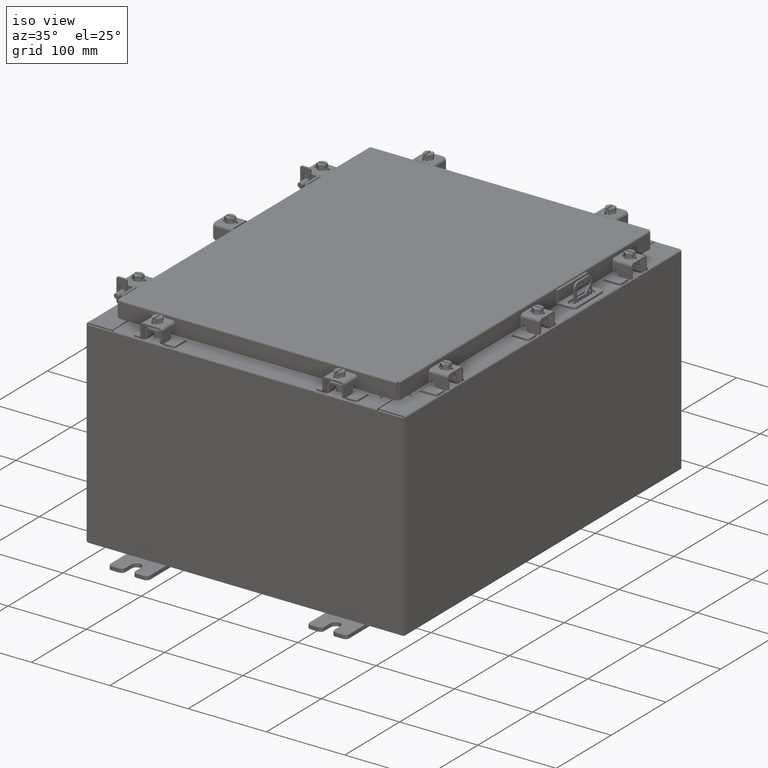
[diagram: clean part render]
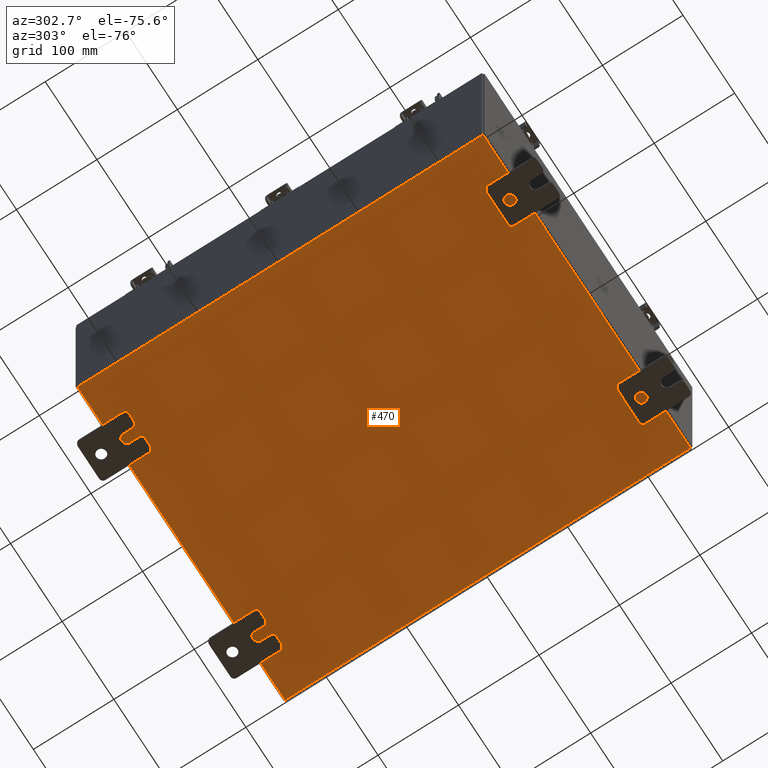
[diagram: tour spotlight — one face highlighted and labeled with its STEP entity id]
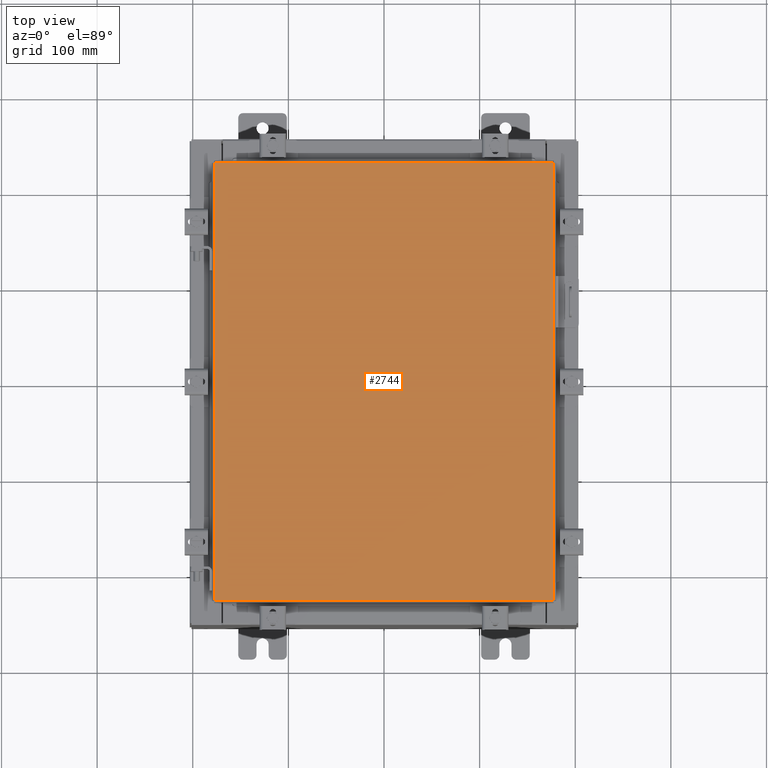
[diagram: tour spotlight — one face highlighted and labeled with its STEP entity id]
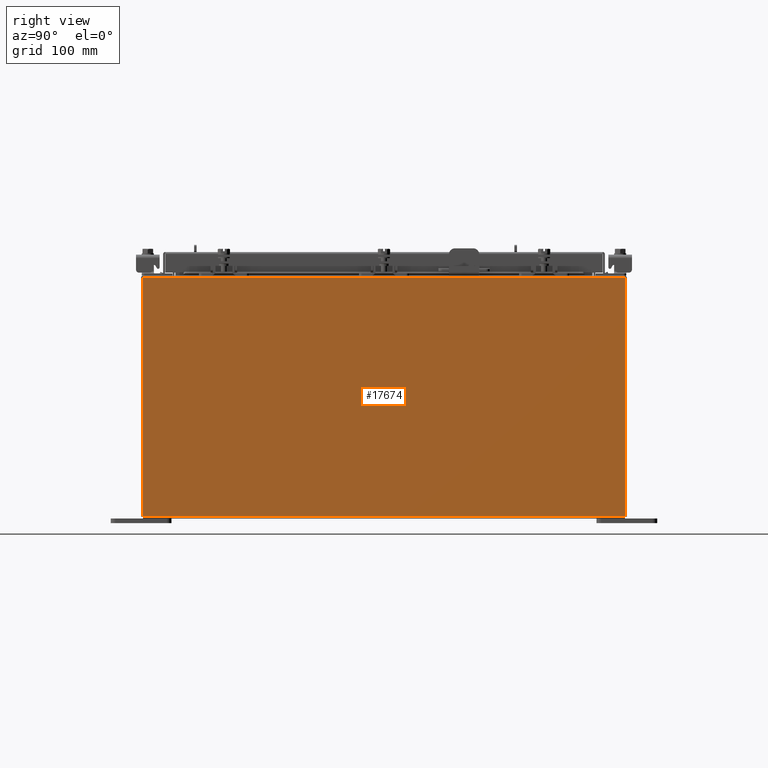
[diagram: tour spotlight — one face highlighted and labeled with its STEP entity id]
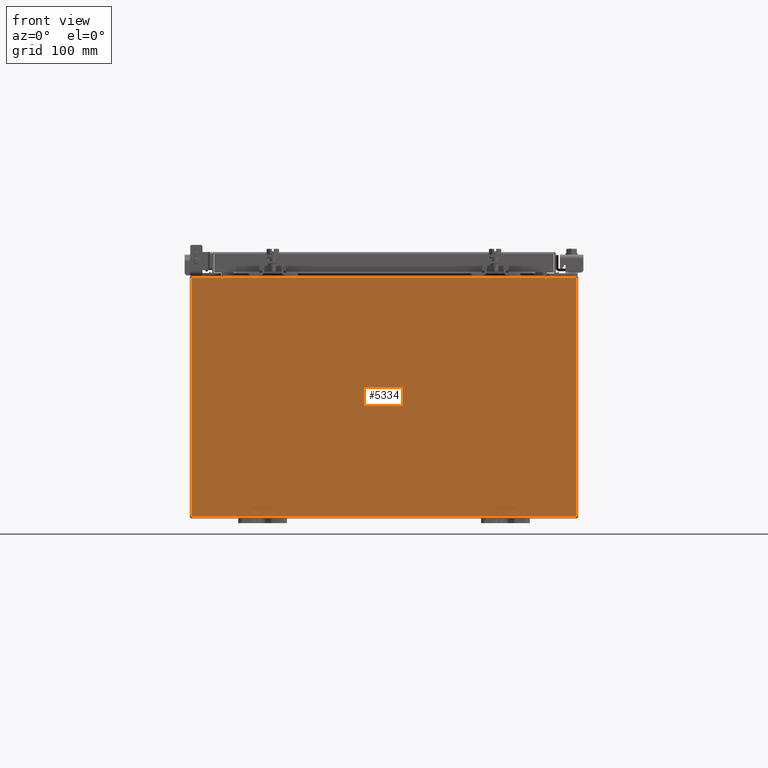
[diagram: tour spotlight — one face highlighted and labeled with its STEP entity id]
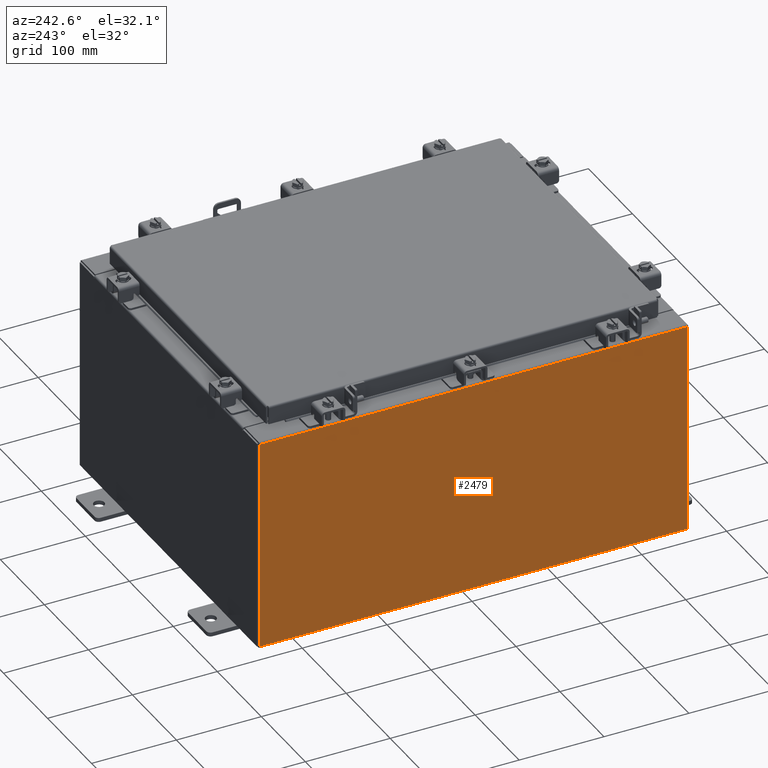
[diagram: tour spotlight — one face highlighted and labeled with its STEP entity id]
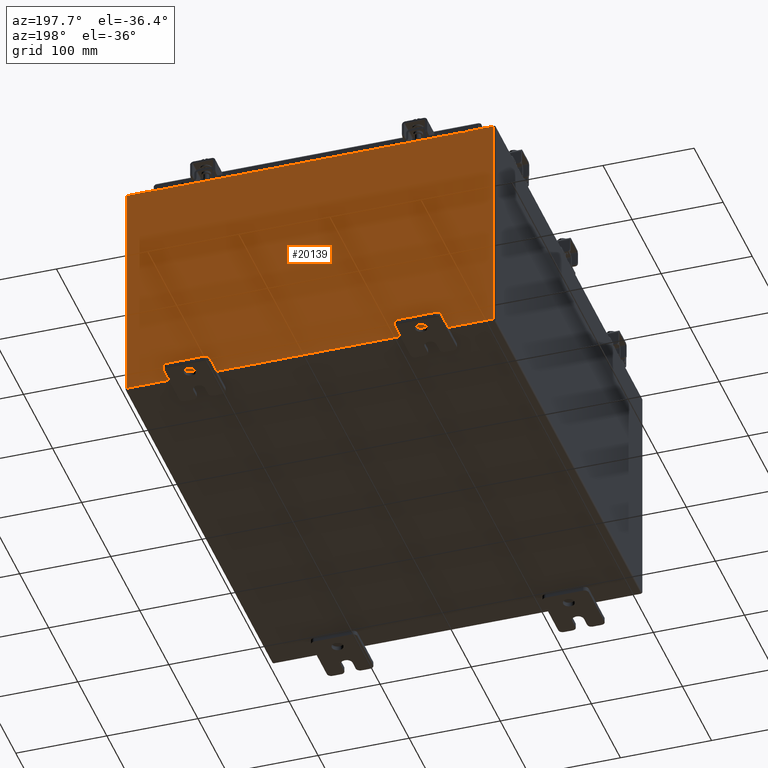
[diagram: tour spotlight — one face highlighted and labeled with its STEP entity id]
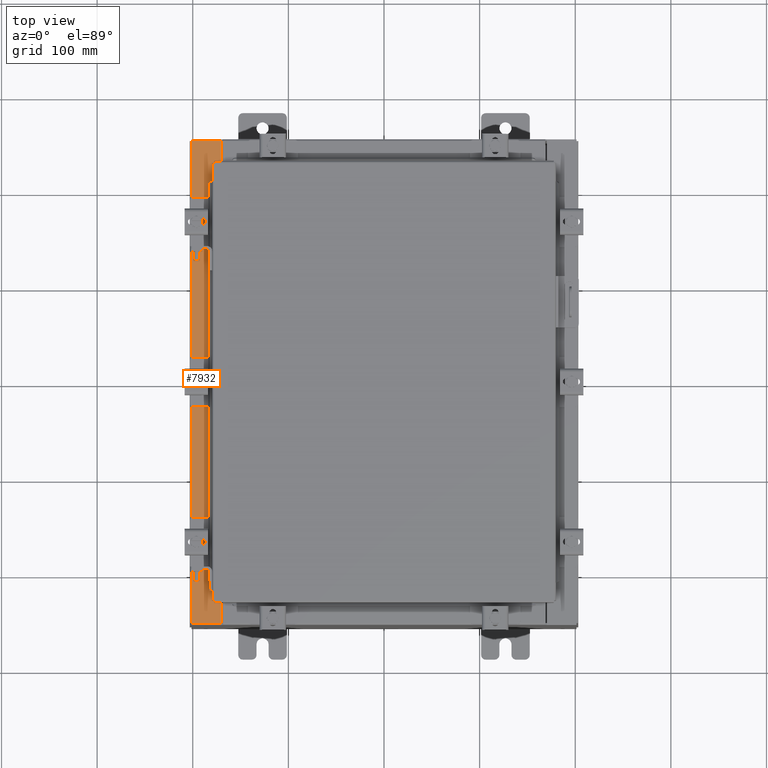
[diagram: tour spotlight — one face highlighted and labeled with its STEP entity id]
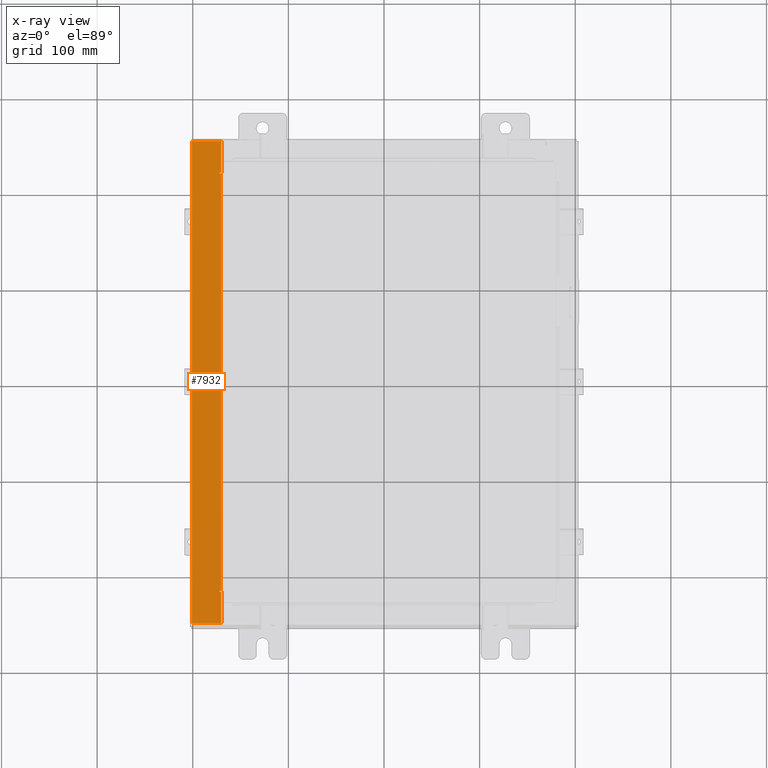
[diagram: x-ray of the same camera — body ghosted, this tour face saturated]
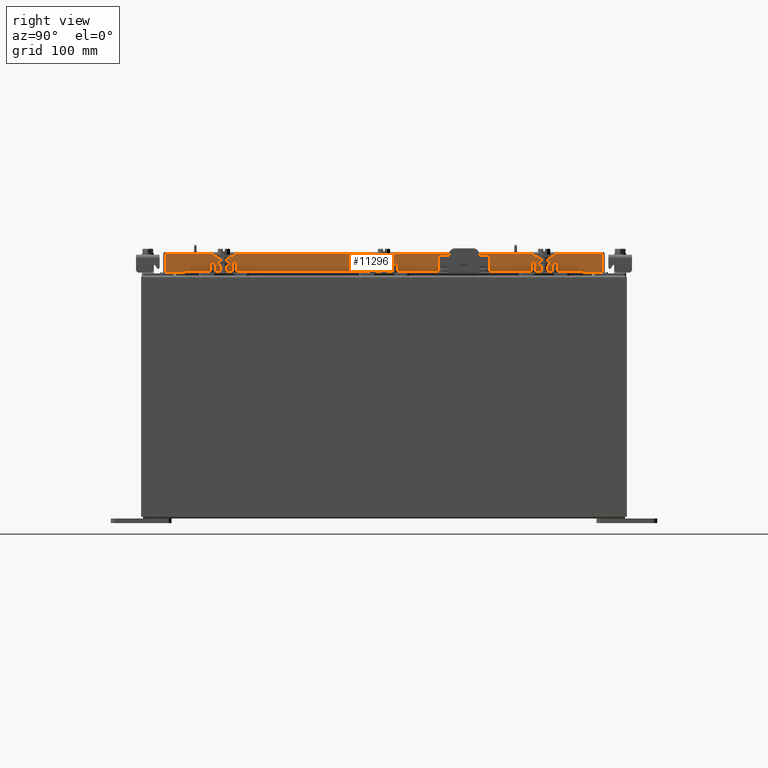
[diagram: tour spotlight — one face highlighted and labeled with its STEP entity id]
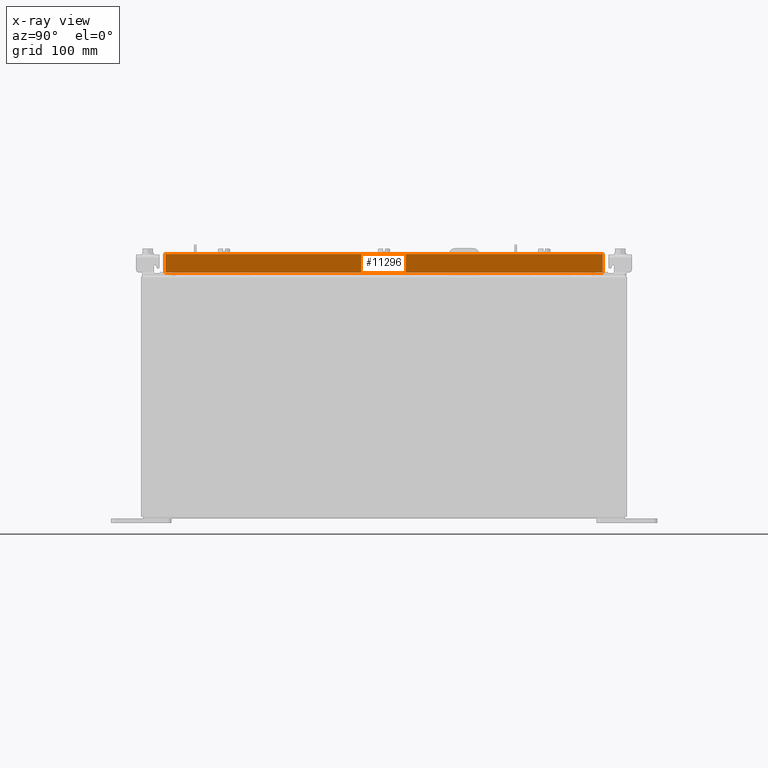
[diagram: x-ray of the same camera — body ghosted, this tour face saturated]
A machine part: a face-by-face anatomy tour. The part has 1784 B-rep faces; the first image is the clean iso view, then the 8 largest visible faces are spotlighted one at a time (largest first), each with its STEP entity span.

Face 1 — auxiliary view, entity #470. In plain terms, the highlighted planar face has unit normal (0, 0, -1).
Definition (entity closure, byte-faithful):
#470 = ADVANCED_FACE ( 'NONE', ( #15129 ), #4348, .T. ) ;
#880 = VERTEX_POINT ( 'NONE', #19056 ) ;
#1018 = LINE ( 'NONE', #14073, #5076 ) ;
#1867 = EDGE_LOOP ( 'NONE', ( #3845, #10403, #22343, #6844 ) ) ;
#1892 = DIRECTION ( 'NONE',  ( -0.0000000000000000000, -1.000000000000000000, -0.0000000000000000000 ) ) ;
#2309 = EDGE_CURVE ( 'NONE', #15079, #12192, #22142, .T. ) ;
#3670 = CARTESIAN_POINT ( 'NONE',  ( -7.912299999999997400, 9.925299999999998200, -0.07470000000000000300 ) ) ;
#3845 = ORIENTED_EDGE ( 'NONE', *, *, #15566, .F. ) ;
#4290 = CARTESIAN_POINT ( 'NONE',  ( 0.0000000000000000000, 0.0000000000000000000, -0.07470000000000000300 ) ) ;
#4348 = PLANE ( 'NONE',  #14197 ) ;
#4720 = CARTESIAN_POINT ( 'NONE',  ( -7.912299999999997400, -9.925300000000000000, -0.07469999999999994700 ) ) ;
#5076 = VECTOR ( 'NONE', #1892, 39.37007874015748100 ) ;
#5365 = CARTESIAN_POINT ( 'NONE',  ( 7.912300000000001900, 9.925299999999992900, -0.07469999999999994700 ) ) ;
#6234 = EDGE_CURVE ( 'NONE', #14977, #12192, #16715, .T. ) ;
#6243 = VECTOR ( 'NONE', #8342, 39.37007874015748100 ) ;
#6844 = ORIENTED_EDGE ( 'NONE', *, *, #12830, .T. ) ;
#7458 = DIRECTION ( 'NONE',  ( -1.000000000000000000, -0.0000000000000000000, -0.0000000000000000000 ) ) ;
#8342 = DIRECTION ( 'NONE',  ( 1.000000000000000000, 0.0000000000000000000, 0.0000000000000000000 ) ) ;
#9625 = DIRECTION ( 'NONE',  ( -1.000000000000000000, 0.0000000000000000000, -0.0000000000000000000 ) ) ;
#9707 = DIRECTION ( 'NONE',  ( 0.0000000000000000000, 0.0000000000000000000, -1.000000000000000000 ) ) ;
#10403 = ORIENTED_EDGE ( 'NONE', *, *, #6234, .T. ) ;
#10908 = CARTESIAN_POINT ( 'NONE',  ( -7.999999999999997300, 9.925299999999998200, -0.07470000000000000300 ) ) ;
#11449 = LINE ( 'NONE', #15262, #6243 ) ;
#12192 = VERTEX_POINT ( 'NONE', #3670 ) ;
#12830 = EDGE_CURVE ( 'NONE', #15079, #880, #1018, .T. ) ;
#12897 = VECTOR ( 'NONE', #7458, 39.37007874015748100 ) ;
#13190 = DIRECTION ( 'NONE',  ( -0.0000000000000000000, 1.000000000000000000, -0.0000000000000000000 ) ) ;
#14073 = CARTESIAN_POINT ( 'NONE',  ( 7.912300000000001900, 9.925299999999998200, -0.07469999999999994700 ) ) ;
#14197 = AXIS2_PLACEMENT_3D ( 'NONE', #4290, #9707, #9625 ) ;
#14977 = VERTEX_POINT ( 'NONE', #4720 ) ;
#15046 = VECTOR ( 'NONE', #13190, 39.37007874015748100 ) ;
#15079 = VERTEX_POINT ( 'NONE', #5365 ) ;
#15129 = FACE_OUTER_BOUND ( 'NONE', #1867, .T. ) ;
#15262 = CARTESIAN_POINT ( 'NONE',  ( -7.999999999999997300, -9.925300000000001800, -0.07470000000000000300 ) ) ;
#15566 = EDGE_CURVE ( 'NONE', #14977, #880, #11449, .T. ) ;
#16715 = LINE ( 'NONE', #20099, #15046 ) ;
#19056 = CARTESIAN_POINT ( 'NONE',  ( 7.912300000000001900, -9.925300000000001800, -0.07470000000000000300 ) ) ;
#20099 = CARTESIAN_POINT ( 'NONE',  ( -7.912299999999997400, -9.925300000000001800, -0.07469999999999994700 ) ) ;
#22142 = LINE ( 'NONE', #10908, #12897 ) ;
#22343 = ORIENTED_EDGE ( 'NONE', *, *, #2309, .F. ) ;

Face 2 — top view, entity #2744. In plain terms, the highlighted planar face has unit normal (0, 0, -1).
Definition (entity closure, byte-faithful):
#977 = LINE ( 'NONE', #17255, #14305 ) ;
#1365 = DIRECTION ( 'NONE',  ( -1.000000000000000000, 0.0000000000000000000, -0.0000000000000000000 ) ) ;
#1507 = VERTEX_POINT ( 'NONE', #14988 ) ;
#2744 = ADVANCED_FACE ( 'NONE', ( #19665 ), #6511, .F. ) ;
#2867 = VERTEX_POINT ( 'NONE', #20767 ) ;
#3836 = VECTOR ( 'NONE', #21736, 39.37007874015748100 ) ;
#4334 = ORIENTED_EDGE ( 'NONE', *, *, #13848, .T. ) ;
#4351 = DIRECTION ( 'NONE',  ( 0.0000000000000000000, -1.000000000000000000, 0.0000000000000000000 ) ) ;
#4987 = DIRECTION ( 'NONE',  ( -1.000000000000000000, -0.0000000000000000000, -0.0000000000000000000 ) ) ;
#5239 = DIRECTION ( 'NONE',  ( 1.000000000000000000, -0.0000000000000000000, -0.0000000000000000000 ) ) ;
#5463 = EDGE_CURVE ( 'NONE', #6940, #12740, #19441, .T. ) ;
#5826 = EDGE_CURVE ( 'NONE', #12740, #1507, #17513, .T. ) ;
#6511 = PLANE ( 'NONE',  #21649 ) ;
#6892 = CARTESIAN_POINT ( 'NONE',  ( -6.990300000000003100, -9.006300000000003100, -2.048885995248197400E-016 ) ) ;
#6940 = VERTEX_POINT ( 'NONE', #13369 ) ;
#7102 = EDGE_CURVE ( 'NONE', #1507, #2867, #17734, .T. ) ;
#7457 = ORIENTED_EDGE ( 'NONE', *, *, #7102, .T. ) ;
#7784 = CARTESIAN_POINT ( 'NONE',  ( 6.990299999999996800, -9.006300000000003100, 3.414809992080329000E-016 ) ) ;
#7956 = EDGE_LOOP ( 'NONE', ( #10164, #7457, #4334, #12708 ) ) ;
#8773 = VECTOR ( 'NONE', #5239, 39.37007874015748100 ) ;
#10044 = CARTESIAN_POINT ( 'NONE',  ( 0.0000000000000000000, 0.0000000000000000000, 0.0000000000000000000 ) ) ;
#10164 = ORIENTED_EDGE ( 'NONE', *, *, #5826, .T. ) ;
#11815 = DIRECTION ( 'NONE',  ( 0.0000000000000000000, 0.0000000000000000000, -1.000000000000000000 ) ) ;
#12708 = ORIENTED_EDGE ( 'NONE', *, *, #5463, .T. ) ;
#12740 = VERTEX_POINT ( 'NONE', #6892 ) ;
#13060 = CARTESIAN_POINT ( 'NONE',  ( -6.990300000000003100, 9.006299999999996000, -2.048885995248197400E-016 ) ) ;
#13369 = CARTESIAN_POINT ( 'NONE',  ( -6.990300000000003100, 9.006299999999996000, -2.048885995248197400E-016 ) ) ;
#13848 = EDGE_CURVE ( 'NONE', #2867, #6940, #977, .T. ) ;
#13932 = CARTESIAN_POINT ( 'NONE',  ( -6.990300000000003100, -9.006300000000003100, -2.048885995248197400E-016 ) ) ;
#14305 = VECTOR ( 'NONE', #4987, 39.37007874015748100 ) ;
#14988 = CARTESIAN_POINT ( 'NONE',  ( 6.990299999999996800, -9.006300000000003100, 3.414809992080329000E-016 ) ) ;
#17255 = CARTESIAN_POINT ( 'NONE',  ( 6.990299999999996800, 9.006299999999996000, 3.414809992080329000E-016 ) ) ;
#17513 = LINE ( 'NONE', #13932, #8773 ) ;
#17734 = LINE ( 'NONE', #7784, #3836 ) ;
#18900 = VECTOR ( 'NONE', #4351, 39.37007874015748100 ) ;
#19441 = LINE ( 'NONE', #13060, #18900 ) ;
#19665 = FACE_OUTER_BOUND ( 'NONE', #7956, .T. ) ;
#20767 = CARTESIAN_POINT ( 'NONE',  ( 6.990299999999996800, 9.006299999999996000, 3.414809992080329000E-016 ) ) ;
#21649 = AXIS2_PLACEMENT_3D ( 'NONE', #10044, #11815, #1365 ) ;
#21736 = DIRECTION ( 'NONE',  ( 0.0000000000000000000, 1.000000000000000000, 0.0000000000000000000 ) ) ;

Face 3 — right view, entity #17674. In plain terms, the highlighted planar face has unit normal (-1, 0, 0).
Definition (entity closure, byte-faithful):
#184 = DIRECTION ( 'NONE',  ( -0.0000000000000000000, -1.000000000000000000, -0.0000000000000000000 ) ) ;
#1106 = LINE ( 'NONE', #18015, #5160 ) ;
#1653 = DIRECTION ( 'NONE',  ( 3.523082860860887800E-015, 0.0000000000000000000, 1.000000000000000000 ) ) ;
#3109 = ORIENTED_EDGE ( 'NONE', *, *, #21740, .T. ) ;
#3563 = CARTESIAN_POINT ( 'NONE',  ( 8.000000000000001800, -9.925300000000001800, 0.01299999999999984700 ) ) ;
#4260 = AXIS2_PLACEMENT_3D ( 'NONE', #19028, #12117, #1653 ) ;
#4797 = ORIENTED_EDGE ( 'NONE', *, *, #10782, .F. ) ;
#5160 = VECTOR ( 'NONE', #19831, 39.37007874015748100 ) ;
#7076 = CARTESIAN_POINT ( 'NONE',  ( 8.000000000000001800, -9.925300000000001800, 0.01299999999999984300 ) ) ;
#7546 = FACE_OUTER_BOUND ( 'NONE', #9130, .T. ) ;
#7598 = LINE ( 'NONE', #21951, #11718 ) ;
#7952 = ORIENTED_EDGE ( 'NONE', *, *, #16639, .T. ) ;
#8370 = DIRECTION ( 'NONE',  ( 3.523082860860888200E-015, -2.201926788038055100E-016, 1.000000000000000000 ) ) ;
#9130 = EDGE_LOOP ( 'NONE', ( #3109, #7952, #4797, #15101 ) ) ;
#9550 = VERTEX_POINT ( 'NONE', #21829 ) ;
#10782 = EDGE_CURVE ( 'NONE', #9550, #16245, #17217, .T. ) ;
#11718 = VECTOR ( 'NONE', #15011, 39.37007874015748100 ) ;
#12057 = VECTOR ( 'NONE', #184, 39.37007874015748100 ) ;
#12117 = DIRECTION ( 'NONE',  ( -1.000000000000000000, 0.0000000000000000000, 3.523082860860887800E-015 ) ) ;
#12254 = CARTESIAN_POINT ( 'NONE',  ( 8.000000000000037300, -9.925300000000005300, 9.837599999999998300 ) ) ;
#13102 = EDGE_CURVE ( 'NONE', #9550, #13887, #19244, .T. ) ;
#13887 = VERTEX_POINT ( 'NONE', #19083 ) ;
#14604 = VECTOR ( 'NONE', #8370, 39.37007874015748100 ) ;
#15011 = DIRECTION ( 'NONE',  ( -3.523082860860888200E-015, 0.0000000000000000000, -1.000000000000000000 ) ) ;
#15059 = VERTEX_POINT ( 'NONE', #12254 ) ;
#15101 = ORIENTED_EDGE ( 'NONE', *, *, #13102, .T. ) ;
#16245 = VERTEX_POINT ( 'NONE', #7076 ) ;
#16639 = EDGE_CURVE ( 'NONE', #15059, #16245, #7598, .T. ) ;
#17217 = LINE ( 'NONE', #3563, #12057 ) ;
#17674 = ADVANCED_FACE ( 'NONE', ( #7546 ), #20772, .F. ) ;
#18015 = CARTESIAN_POINT ( 'NONE',  ( 8.000000000000035500, 9.925299999999991100, 9.837599999999998300 ) ) ;
#19028 = CARTESIAN_POINT ( 'NONE',  ( 8.000000000000001800, 0.0000000000000000000, -2.844547654289869600E-014 ) ) ;
#19083 = CARTESIAN_POINT ( 'NONE',  ( 8.000000000000035500, 9.925299999999987600, 9.837599999999998300 ) ) ;
#19244 = LINE ( 'NONE', #20565, #14604 ) ;
#19831 = DIRECTION ( 'NONE',  ( -0.0000000000000000000, -1.000000000000000000, -0.0000000000000000000 ) ) ;
#20565 = CARTESIAN_POINT ( 'NONE',  ( 8.000000000000001800, 9.925299999999998200, -2.625999814796728400E-014 ) ) ;
#20772 = PLANE ( 'NONE',  #4260 ) ;
#21740 = EDGE_CURVE ( 'NONE', #13887, #15059, #1106, .T. ) ;
#21829 = CARTESIAN_POINT ( 'NONE',  ( 8.000000000000001800, 9.925299999999992900, 0.01299999999999984700 ) ) ;
#21951 = CARTESIAN_POINT ( 'NONE',  ( 8.000000000000001800, -9.925300000000001800, -2.844547654289869600E-014 ) ) ;

Face 4 — front view, entity #5334. In plain terms, the highlighted planar face has unit normal (-0, 1, -0).
Definition (entity closure, byte-faithful):
#133 = CARTESIAN_POINT ( 'NONE',  ( 6.637199999999997300, 0.0000000000000000000, 4.874950000000001000 ) ) ;
#700 = CARTESIAN_POINT ( 'NONE',  ( 0.0000000000000000000, 0.0000000000000000000, 0.0000000000000000000 ) ) ;
#955 = DIRECTION ( 'NONE',  ( 1.000000000000000000, 0.0000000000000000000, 0.0000000000000000000 ) ) ;
#1143 = CARTESIAN_POINT ( 'NONE',  ( -6.637200000000000900, -1.707404996040164500E-016, 4.912300000000001000 ) ) ;
#1147 = DIRECTION ( 'NONE',  ( -0.0000000000000000000, -0.0000000000000000000, 1.000000000000000000 ) ) ;
#1381 = CARTESIAN_POINT ( 'NONE',  ( -6.674550000000000900, 0.0000000000000000000, 4.925300000000000900 ) ) ;
#1389 = VERTEX_POINT ( 'NONE', #21246 ) ;
#1433 = VERTEX_POINT ( 'NONE', #4407 ) ;
#1451 = CARTESIAN_POINT ( 'NONE',  ( -6.637200000000000900, -1.707404996040164500E-016, 4.912300000000001000 ) ) ;
#1465 = EDGE_CURVE ( 'NONE', #13110, #17860, #3916, .T. ) ;
#2424 = PLANE ( 'NONE',  #20073 ) ;
#2566 = VECTOR ( 'NONE', #8254, 39.37007874015748100 ) ;
#2634 = CIRCLE ( 'NONE', #11332, 0.01867500000000003900 ) ;
#2861 = VECTOR ( 'NONE', #3689, 39.37007874015748100 ) ;
#3078 = VECTOR ( 'NONE', #5306, 39.37007874015748100 ) ;
#3605 = CARTESIAN_POINT ( 'NONE',  ( -6.637200000000000900, -0.0000000000000000000, 0.0000000000000000000 ) ) ;
#3689 = DIRECTION ( 'NONE',  ( 0.0000000000000000000, 0.0000000000000000000, -1.000000000000000000 ) ) ;
#3773 = CARTESIAN_POINT ( 'NONE',  ( 6.674549999999998200, 0.0000000000000000000, 4.925300000000000900 ) ) ;
#3916 = LINE ( 'NONE', #1143, #17268 ) ;
#4407 = CARTESIAN_POINT ( 'NONE',  ( -7.925300000000002700, 0.0000000000000000000, 4.925300000000000900 ) ) ;
#5268 = FACE_OUTER_BOUND ( 'NONE', #15280, .T. ) ;
#5306 = DIRECTION ( 'NONE',  ( 0.0000000000000000000, 0.0000000000000000000, -1.000000000000000000 ) ) ;
#5334 = ADVANCED_FACE ( 'NONE', ( #5268 ), #2424, .F. ) ;
#5415 = VECTOR ( 'NONE', #21693, 39.37007874015748100 ) ;
#5443 = CARTESIAN_POINT ( 'NONE',  ( -6.674550000000000900, 0.0000000000000000000, 4.874950000000001000 ) ) ;
#5450 = ORIENTED_EDGE ( 'NONE', *, *, #18577, .F. ) ;
#5914 = DIRECTION ( 'NONE',  ( 0.0000000000000000000, -0.0000000000000000000, -1.000000000000000000 ) ) ;
#6482 = ORIENTED_EDGE ( 'NONE', *, *, #14341, .F. ) ;
#6626 = LINE ( 'NONE', #18771, #20018 ) ;
#6631 = VERTEX_POINT ( 'NONE', #3773 ) ;
#7142 = EDGE_CURVE ( 'NONE', #6631, #13543, #21838, .T. ) ;
#7363 = VERTEX_POINT ( 'NONE', #1381 ) ;
#7513 = DIRECTION ( 'NONE',  ( 1.000000000000000000, 0.0000000000000000000, 0.0000000000000000000 ) ) ;
#7702 = LINE ( 'NONE', #20923, #3078 ) ;
#7954 = EDGE_CURVE ( 'NONE', #1389, #1433, #14018, .T. ) ;
#8254 = DIRECTION ( 'NONE',  ( -1.000000000000000000, -0.0000000000000000000, -0.0000000000000000000 ) ) ;
#8461 = VECTOR ( 'NONE', #955, 39.37007874015748100 ) ;
#8974 = CARTESIAN_POINT ( 'NONE',  ( -6.655875000000000900, 0.0000000000000000000, 4.874950000000001000 ) ) ;
#9285 = EDGE_CURVE ( 'NONE', #13543, #18596, #18353, .T. ) ;
#9303 = CARTESIAN_POINT ( 'NONE',  ( 6.655874999999998200, 0.0000000000000000000, 4.874950000000001000 ) ) ;
#9497 = CARTESIAN_POINT ( 'NONE',  ( 7.925299999999996500, 0.0000000000000000000, 4.925300000000000900 ) ) ;
#10742 = DIRECTION ( 'NONE',  ( 0.0000000000000000000, 0.0000000000000000000, -1.000000000000000000 ) ) ;
#11080 = DIRECTION ( 'NONE',  ( 0.0000000000000000000, 0.0000000000000000000, -1.000000000000000000 ) ) ;
#11332 = AXIS2_PLACEMENT_3D ( 'NONE', #9303, #21511, #11080 ) ;
#11959 = AXIS2_PLACEMENT_3D ( 'NONE', #8974, #21180, #10742 ) ;
#11967 = ORIENTED_EDGE ( 'NONE', *, *, #7142, .T. ) ;
#11985 = CIRCLE ( 'NONE', #11959, 0.01867500000000003900 ) ;
#12120 = ORIENTED_EDGE ( 'NONE', *, *, #14303, .T. ) ;
#12188 = ORIENTED_EDGE ( 'NONE', *, *, #1465, .T. ) ;
#12474 = CARTESIAN_POINT ( 'NONE',  ( 6.637199999999999100, 0.0000000000000000000, 4.912300000000001000 ) ) ;
#13110 = VERTEX_POINT ( 'NONE', #1451 ) ;
#13154 = ORIENTED_EDGE ( 'NONE', *, *, #14874, .T. ) ;
#13543 = VERTEX_POINT ( 'NONE', #9497 ) ;
#13985 = EDGE_CURVE ( 'NONE', #13110, #19746, #21399, .T. ) ;
#14018 = LINE ( 'NONE', #20265, #17552 ) ;
#14303 = EDGE_CURVE ( 'NONE', #18596, #1389, #21101, .T. ) ;
#14341 = EDGE_CURVE ( 'NONE', #14486, #17860, #6626, .T. ) ;
#14486 = VERTEX_POINT ( 'NONE', #133 ) ;
#14874 = EDGE_CURVE ( 'NONE', #1433, #7363, #18824, .T. ) ;
#15116 = VERTEX_POINT ( 'NONE', #5443 ) ;
#15280 = EDGE_LOOP ( 'NONE', ( #16894, #19924, #19619, #12188, #6482, #5450, #22508, #11967, #19092, #12120, #17857, #13154 ) ) ;
#15310 = EDGE_CURVE ( 'NONE', #15116, #7363, #19338, .T. ) ;
#15904 = CARTESIAN_POINT ( 'NONE',  ( -6.637200000000000900, -0.0000000000000000000, 4.874950000000001000 ) ) ;
#15960 = DIRECTION ( 'NONE',  ( 0.0000000000000000000, 0.0000000000000000000, -1.000000000000000000 ) ) ;
#16378 = DIRECTION ( 'NONE',  ( 0.0000000000000000000, -1.000000000000000000, 0.0000000000000000000 ) ) ;
#16434 = CARTESIAN_POINT ( 'NONE',  ( -6.674550000000000900, -0.0000000000000000000, 0.0000000000000000000 ) ) ;
#16779 = CARTESIAN_POINT ( 'NONE',  ( -7.925300000000002700, 0.0000000000000000000, 4.925300000000000900 ) ) ;
#16872 = CARTESIAN_POINT ( 'NONE',  ( -7.925300000000002700, 0.0000000000000000000, -4.925299999999998200 ) ) ;
#16878 = VERTEX_POINT ( 'NONE', #17284 ) ;
#16894 = ORIENTED_EDGE ( 'NONE', *, *, #15310, .F. ) ;
#17268 = VECTOR ( 'NONE', #7513, 39.37007874015748100 ) ;
#17284 = CARTESIAN_POINT ( 'NONE',  ( 6.674549999999999100, 0.0000000000000000000, 4.874950000000001000 ) ) ;
#17552 = VECTOR ( 'NONE', #1147, 39.37007874015748100 ) ;
#17711 = CARTESIAN_POINT ( 'NONE',  ( 7.925299999999996500, 0.0000000000000000000, 4.925300000000000900 ) ) ;
#17857 = ORIENTED_EDGE ( 'NONE', *, *, #7954, .T. ) ;
#17860 = VERTEX_POINT ( 'NONE', #12474 ) ;
#18090 = CARTESIAN_POINT ( 'NONE',  ( 7.925299999999996500, 0.0000000000000000000, -4.925299999999998200 ) ) ;
#18223 = DIRECTION ( 'NONE',  ( 1.000000000000000000, 0.0000000000000000000, 0.0000000000000000000 ) ) ;
#18300 = VECTOR ( 'NONE', #18223, 39.37007874015748100 ) ;
#18353 = LINE ( 'NONE', #17711, #22396 ) ;
#18577 = EDGE_CURVE ( 'NONE', #16878, #14486, #2634, .T. ) ;
#18596 = VERTEX_POINT ( 'NONE', #18090 ) ;
#18771 = CARTESIAN_POINT ( 'NONE',  ( 6.637199999999999100, 0.0000000000000000000, 0.0000000000000000000 ) ) ;
#18824 = LINE ( 'NONE', #16779, #18300 ) ;
#19092 = ORIENTED_EDGE ( 'NONE', *, *, #9285, .T. ) ;
#19338 = LINE ( 'NONE', #16434, #5415 ) ;
#19619 = ORIENTED_EDGE ( 'NONE', *, *, #13985, .F. ) ;
#19683 = EDGE_CURVE ( 'NONE', #6631, #16878, #7702, .T. ) ;
#19746 = VERTEX_POINT ( 'NONE', #15904 ) ;
#19924 = ORIENTED_EDGE ( 'NONE', *, *, #22157, .F. ) ;
#20018 = VECTOR ( 'NONE', #22259, 39.37007874015748100 ) ;
#20073 = AXIS2_PLACEMENT_3D ( 'NONE', #700, #16378, #5914 ) ;
#20265 = CARTESIAN_POINT ( 'NONE',  ( -7.925300000000002700, 0.0000000000000000000, 4.925300000000000900 ) ) ;
#20923 = CARTESIAN_POINT ( 'NONE',  ( 6.674549999999999100, 0.0000000000000000000, 0.0000000000000000000 ) ) ;
#21101 = LINE ( 'NONE', #16872, #2566 ) ;
#21180 = DIRECTION ( 'NONE',  ( -0.0000000000000000000, 1.000000000000000000, -0.0000000000000000000 ) ) ;
#21246 = CARTESIAN_POINT ( 'NONE',  ( -7.925300000000002700, 0.0000000000000000000, -4.925299999999998200 ) ) ;
#21399 = LINE ( 'NONE', #3605, #2861 ) ;
#21511 = DIRECTION ( 'NONE',  ( -0.0000000000000000000, 1.000000000000000000, -0.0000000000000000000 ) ) ;
#21693 = DIRECTION ( 'NONE',  ( 0.0000000000000000000, 0.0000000000000000000, 1.000000000000000000 ) ) ;
#21808 = CARTESIAN_POINT ( 'NONE',  ( -7.925300000000002700, 0.0000000000000000000, 4.925300000000000900 ) ) ;
#21838 = LINE ( 'NONE', #21808, #8461 ) ;
#22157 = EDGE_CURVE ( 'NONE', #19746, #15116, #11985, .T. ) ;
#22259 = DIRECTION ( 'NONE',  ( 0.0000000000000000000, 0.0000000000000000000, 1.000000000000000000 ) ) ;
#22396 = VECTOR ( 'NONE', #15960, 39.37007874015748100 ) ;
#22508 = ORIENTED_EDGE ( 'NONE', *, *, #19683, .F. ) ;

Face 5 — auxiliary view, entity #2479. In plain terms, the highlighted planar face has unit normal (1, 0, 0).
Definition (entity closure, byte-faithful):
#43 = CARTESIAN_POINT ( 'NONE',  ( -8.000000000000032000, -9.925300000000000000, 9.837599999999998300 ) ) ;
#362 = FACE_OUTER_BOUND ( 'NONE', #10999, .T. ) ;
#628 = LINE ( 'NONE', #21563, #13955 ) ;
#832 = EDGE_CURVE ( 'NONE', #11740, #6951, #18426, .T. ) ;
#2360 = ORIENTED_EDGE ( 'NONE', *, *, #832, .T. ) ;
#2469 = DIRECTION ( 'NONE',  ( 1.000000000000000000, 0.0000000000000000000, 3.523082860860887800E-015 ) ) ;
#2479 = ADVANCED_FACE ( 'NONE', ( #362 ), #10026, .F. ) ;
#3506 = DIRECTION ( 'NONE',  ( 3.523082860860888200E-015, 0.0000000000000000000, -1.000000000000000000 ) ) ;
#3737 = DIRECTION ( 'NONE',  ( 3.523082860860887800E-015, 0.0000000000000000000, -1.000000000000000000 ) ) ;
#4492 = VECTOR ( 'NONE', #3506, 39.37007874015748100 ) ;
#4732 = LINE ( 'NONE', #18022, #13461 ) ;
#5815 = VERTEX_POINT ( 'NONE', #43 ) ;
#6951 = VERTEX_POINT ( 'NONE', #18634 ) ;
#8437 = EDGE_CURVE ( 'NONE', #5815, #11740, #4732, .T. ) ;
#9326 = DIRECTION ( 'NONE',  ( 0.0000000000000000000, 1.000000000000000000, 0.0000000000000000000 ) ) ;
#9373 = DIRECTION ( 'NONE',  ( -3.523082860860888200E-015, 0.0000000000000000000, 1.000000000000000000 ) ) ;
#9488 = EDGE_CURVE ( 'NONE', #18554, #6951, #14485, .T. ) ;
#9866 = VECTOR ( 'NONE', #20002, 39.37007874015748100 ) ;
#10026 = PLANE ( 'NONE',  #13809 ) ;
#10431 = EDGE_CURVE ( 'NONE', #18554, #5815, #628, .T. ) ;
#10999 = EDGE_LOOP ( 'NONE', ( #16474, #2360, #16015, #11480 ) ) ;
#11480 = ORIENTED_EDGE ( 'NONE', *, *, #10431, .T. ) ;
#11740 = VERTEX_POINT ( 'NONE', #16254 ) ;
#13009 = CARTESIAN_POINT ( 'NONE',  ( -7.999999999999997300, 9.925299999999998200, 0.01299999999999984700 ) ) ;
#13461 = VECTOR ( 'NONE', #9326, 39.37007874015748100 ) ;
#13809 = AXIS2_PLACEMENT_3D ( 'NONE', #20639, #2469, #3737 ) ;
#13955 = VECTOR ( 'NONE', #9373, 39.37007874015748100 ) ;
#14485 = LINE ( 'NONE', #13009, #9866 ) ;
#16015 = ORIENTED_EDGE ( 'NONE', *, *, #9488, .F. ) ;
#16254 = CARTESIAN_POINT ( 'NONE',  ( -8.000000000000032000, 9.925299999999998200, 9.837599999999998300 ) ) ;
#16474 = ORIENTED_EDGE ( 'NONE', *, *, #8437, .T. ) ;
#17926 = CARTESIAN_POINT ( 'NONE',  ( -7.999999999999997300, -9.925300000000000000, 0.01299999999999984700 ) ) ;
#18022 = CARTESIAN_POINT ( 'NONE',  ( -8.000000000000032000, -9.925300000000001800, 9.837599999999998300 ) ) ;
#18319 = CARTESIAN_POINT ( 'NONE',  ( -7.999999999999997300, 9.925299999999998200, -2.844547654289867700E-014 ) ) ;
#18426 = LINE ( 'NONE', #18319, #4492 ) ;
#18554 = VERTEX_POINT ( 'NONE', #17926 ) ;
#18634 = CARTESIAN_POINT ( 'NONE',  ( -7.999999999999997300, 9.925299999999998200, 0.01299999999999984300 ) ) ;
#20002 = DIRECTION ( 'NONE',  ( -0.0000000000000000000, 1.000000000000000000, -0.0000000000000000000 ) ) ;
#20639 = CARTESIAN_POINT ( 'NONE',  ( -7.999999999999997300, 0.0000000000000000000, -2.844547654289867700E-014 ) ) ;
#21563 = CARTESIAN_POINT ( 'NONE',  ( -7.999999999999997300, -9.925300000000001800, -2.844547654289867700E-014 ) ) ;

Face 6 — auxiliary view, entity #20139. In plain terms, the highlighted planar face has unit normal (0, -1, 0).
Definition (entity closure, byte-faithful):
#592 = EDGE_CURVE ( 'NONE', #3718, #18275, #12966, .T. ) ;
#596 = CARTESIAN_POINT ( 'NONE',  ( -7.925300000000002700, 0.0000000000000000000, -4.925299999999998200 ) ) ;
#629 = FACE_OUTER_BOUND ( 'NONE', #17746, .T. ) ;
#1332 = ORIENTED_EDGE ( 'NONE', *, *, #3775, .T. ) ;
#1876 = AXIS2_PLACEMENT_3D ( 'NONE', #9408, #21608, #11171 ) ;
#2195 = ORIENTED_EDGE ( 'NONE', *, *, #12981, .T. ) ;
#2642 = CARTESIAN_POINT ( 'NONE',  ( -7.925300000000002700, 0.0000000000000000000, 4.925300000000000900 ) ) ;
#3315 = ORIENTED_EDGE ( 'NONE', *, *, #13638, .F. ) ;
#3502 = CIRCLE ( 'NONE', #8009, 0.01867500000000003900 ) ;
#3682 = LINE ( 'NONE', #9806, #12410 ) ;
#3718 = VERTEX_POINT ( 'NONE', #12622 ) ;
#3775 = EDGE_CURVE ( 'NONE', #13981, #3718, #7793, .T. ) ;
#4018 = LINE ( 'NONE', #12766, #22020 ) ;
#4194 = VERTEX_POINT ( 'NONE', #17996 ) ;
#4278 = DIRECTION ( 'NONE',  ( 0.0000000000000000000, 0.0000000000000000000, 1.000000000000000000 ) ) ;
#4395 = DIRECTION ( 'NONE',  ( 1.000000000000000000, 0.0000000000000000000, 0.0000000000000000000 ) ) ;
#4466 = VERTEX_POINT ( 'NONE', #11254 ) ;
#4640 = ORIENTED_EDGE ( 'NONE', *, *, #6270, .T. ) ;
#4742 = VERTEX_POINT ( 'NONE', #6750 ) ;
#4907 = DIRECTION ( 'NONE',  ( 0.0000000000000000000, -1.000000000000000000, 0.0000000000000000000 ) ) ;
#4922 = LINE ( 'NONE', #11230, #22358 ) ;
#5594 = DIRECTION ( 'NONE',  ( 0.0000000000000000000, 0.0000000000000000000, 1.000000000000000000 ) ) ;
#5763 = VERTEX_POINT ( 'NONE', #10272 ) ;
#6126 = VERTEX_POINT ( 'NONE', #11118 ) ;
#6270 = EDGE_CURVE ( 'NONE', #20933, #13981, #14488, .T. ) ;
#6750 = CARTESIAN_POINT ( 'NONE',  ( 6.637199999999997300, 0.0000000000000000000, 4.874950000000001000 ) ) ;
#6847 = CIRCLE ( 'NONE', #1876, 0.01867500000000003900 ) ;
#6891 = ORIENTED_EDGE ( 'NONE', *, *, #11768, .T. ) ;
#7092 = EDGE_CURVE ( 'NONE', #4194, #4466, #4922, .T. ) ;
#7318 = ORIENTED_EDGE ( 'NONE', *, *, #592, .T. ) ;
#7793 = LINE ( 'NONE', #596, #16529 ) ;
#7839 = CARTESIAN_POINT ( 'NONE',  ( 6.655874999999998200, 0.0000000000000000000, 4.874950000000001000 ) ) ;
#7943 = DIRECTION ( 'NONE',  ( -0.0000000000000000000, -0.0000000000000000000, 1.000000000000000000 ) ) ;
#8009 = AXIS2_PLACEMENT_3D ( 'NONE', #7839, #20044, #9597 ) ;
#8075 = LINE ( 'NONE', #21397, #21442 ) ;
#8123 = ORIENTED_EDGE ( 'NONE', *, *, #18106, .T. ) ;
#9408 = CARTESIAN_POINT ( 'NONE',  ( -6.655875000000000900, 0.0000000000000000000, 4.874950000000001000 ) ) ;
#9456 = EDGE_CURVE ( 'NONE', #17220, #4194, #6847, .T. ) ;
#9597 = DIRECTION ( 'NONE',  ( 0.0000000000000000000, 0.0000000000000000000, -1.000000000000000000 ) ) ;
#9620 = ORIENTED_EDGE ( 'NONE', *, *, #9456, .F. ) ;
#9691 = CARTESIAN_POINT ( 'NONE',  ( -6.637200000000000900, -1.707404996040164500E-016, 4.912300000000001000 ) ) ;
#9806 = CARTESIAN_POINT ( 'NONE',  ( 6.674549999999999100, 0.0000000000000000000, 0.0000000000000000000 ) ) ;
#9815 = CARTESIAN_POINT ( 'NONE',  ( 7.925299999999996500, 0.0000000000000000000, 4.925300000000000900 ) ) ;
#10243 = CARTESIAN_POINT ( 'NONE',  ( -6.637200000000000900, -0.0000000000000000000, 0.0000000000000000000 ) ) ;
#10269 = LINE ( 'NONE', #2642, #18998 ) ;
#10272 = CARTESIAN_POINT ( 'NONE',  ( 6.674549999999998200, 0.0000000000000000000, 4.925300000000000900 ) ) ;
#10372 = CARTESIAN_POINT ( 'NONE',  ( 6.674549999999999100, 0.0000000000000000000, 4.874950000000001000 ) ) ;
#10956 = DIRECTION ( 'NONE',  ( 1.000000000000000000, 0.0000000000000000000, 0.0000000000000000000 ) ) ;
#11118 = CARTESIAN_POINT ( 'NONE',  ( 6.637199999999999100, 0.0000000000000000000, 4.912300000000001000 ) ) ;
#11171 = DIRECTION ( 'NONE',  ( 0.0000000000000000000, 0.0000000000000000000, -1.000000000000000000 ) ) ;
#11230 = CARTESIAN_POINT ( 'NONE',  ( -6.674550000000000900, -0.0000000000000000000, 0.0000000000000000000 ) ) ;
#11254 = CARTESIAN_POINT ( 'NONE',  ( -6.674550000000000900, 0.0000000000000000000, 4.925300000000000900 ) ) ;
#11383 = EDGE_CURVE ( 'NONE', #16610, #17220, #12779, .T. ) ;
#11574 = DIRECTION ( 'NONE',  ( 0.0000000000000000000, 0.0000000000000000000, -1.000000000000000000 ) ) ;
#11582 = DIRECTION ( 'NONE',  ( 0.0000000000000000000, 0.0000000000000000000, -1.000000000000000000 ) ) ;
#11768 = EDGE_CURVE ( 'NONE', #5763, #20933, #4018, .T. ) ;
#12410 = VECTOR ( 'NONE', #11574, 39.37007874015748100 ) ;
#12622 = CARTESIAN_POINT ( 'NONE',  ( -7.925300000000002700, 0.0000000000000000000, -4.925299999999998200 ) ) ;
#12766 = CARTESIAN_POINT ( 'NONE',  ( -7.925300000000002700, 0.0000000000000000000, 4.925300000000000900 ) ) ;
#12779 = LINE ( 'NONE', #10243, #22034 ) ;
#12966 = LINE ( 'NONE', #18014, #17037 ) ;
#12981 = EDGE_CURVE ( 'NONE', #16610, #6126, #8075, .T. ) ;
#13564 = LINE ( 'NONE', #14300, #18749 ) ;
#13638 = EDGE_CURVE ( 'NONE', #5763, #14450, #3682, .T. ) ;
#13954 = VECTOR ( 'NONE', #11582, 39.37007874015748100 ) ;
#13981 = VERTEX_POINT ( 'NONE', #19294 ) ;
#14109 = ORIENTED_EDGE ( 'NONE', *, *, #22388, .F. ) ;
#14300 = CARTESIAN_POINT ( 'NONE',  ( 6.637199999999999100, 0.0000000000000000000, 0.0000000000000000000 ) ) ;
#14450 = VERTEX_POINT ( 'NONE', #10372 ) ;
#14488 = LINE ( 'NONE', #9815, #13954 ) ;
#15344 = CARTESIAN_POINT ( 'NONE',  ( 0.0000000000000000000, 0.0000000000000000000, 0.0000000000000000000 ) ) ;
#16191 = DIRECTION ( 'NONE',  ( -1.000000000000000000, -0.0000000000000000000, -0.0000000000000000000 ) ) ;
#16529 = VECTOR ( 'NONE', #16191, 39.37007874015748100 ) ;
#16610 = VERTEX_POINT ( 'NONE', #9691 ) ;
#17037 = VECTOR ( 'NONE', #7943, 39.37007874015748100 ) ;
#17104 = DIRECTION ( 'NONE',  ( 0.0000000000000000000, -0.0000000000000000000, -1.000000000000000000 ) ) ;
#17220 = VERTEX_POINT ( 'NONE', #21777 ) ;
#17746 = EDGE_LOOP ( 'NONE', ( #18859, #9620, #19896, #2195, #17977, #14109, #3315, #6891, #4640, #1332, #7318, #8123 ) ) ;
#17875 = EDGE_CURVE ( 'NONE', #4742, #6126, #13564, .T. ) ;
#17977 = ORIENTED_EDGE ( 'NONE', *, *, #17875, .F. ) ;
#17996 = CARTESIAN_POINT ( 'NONE',  ( -6.674550000000000900, 0.0000000000000000000, 4.874950000000001000 ) ) ;
#18014 = CARTESIAN_POINT ( 'NONE',  ( -7.925300000000002700, 0.0000000000000000000, 4.925300000000000900 ) ) ;
#18106 = EDGE_CURVE ( 'NONE', #18275, #4466, #10269, .T. ) ;
#18275 = VERTEX_POINT ( 'NONE', #18718 ) ;
#18718 = CARTESIAN_POINT ( 'NONE',  ( -7.925300000000002700, 0.0000000000000000000, 4.925300000000000900 ) ) ;
#18749 = VECTOR ( 'NONE', #5594, 39.37007874015748100 ) ;
#18859 = ORIENTED_EDGE ( 'NONE', *, *, #7092, .F. ) ;
#18998 = VECTOR ( 'NONE', #4395, 39.37007874015748100 ) ;
#19294 = CARTESIAN_POINT ( 'NONE',  ( 7.925299999999996500, 0.0000000000000000000, -4.925299999999998200 ) ) ;
#19627 = CARTESIAN_POINT ( 'NONE',  ( 7.925299999999996500, 0.0000000000000000000, 4.925300000000000900 ) ) ;
#19896 = ORIENTED_EDGE ( 'NONE', *, *, #11383, .F. ) ;
#20044 = DIRECTION ( 'NONE',  ( -0.0000000000000000000, 1.000000000000000000, -0.0000000000000000000 ) ) ;
#20139 = ADVANCED_FACE ( 'NONE', ( #629 ), #22270, .F. ) ;
#20679 = DIRECTION ( 'NONE',  ( 0.0000000000000000000, 0.0000000000000000000, -1.000000000000000000 ) ) ;
#20933 = VERTEX_POINT ( 'NONE', #19627 ) ;
#21397 = CARTESIAN_POINT ( 'NONE',  ( -6.637200000000000900, -1.707404996040164500E-016, 4.912300000000001000 ) ) ;
#21442 = VECTOR ( 'NONE', #10956, 39.37007874015748100 ) ;
#21520 = DIRECTION ( 'NONE',  ( 1.000000000000000000, 0.0000000000000000000, 0.0000000000000000000 ) ) ;
#21608 = DIRECTION ( 'NONE',  ( -0.0000000000000000000, 1.000000000000000000, -0.0000000000000000000 ) ) ;
#21777 = CARTESIAN_POINT ( 'NONE',  ( -6.637200000000000900, -0.0000000000000000000, 4.874950000000001000 ) ) ;
#21993 = AXIS2_PLACEMENT_3D ( 'NONE', #15344, #4907, #17104 ) ;
#22020 = VECTOR ( 'NONE', #21520, 39.37007874015748100 ) ;
#22034 = VECTOR ( 'NONE', #20679, 39.37007874015748100 ) ;
#22270 = PLANE ( 'NONE',  #21993 ) ;
#22358 = VECTOR ( 'NONE', #4278, 39.37007874015748100 ) ;
#22388 = EDGE_CURVE ( 'NONE', #14450, #4742, #3502, .T. ) ;

Face 7 — top view, entity #7932. An x-ray twin of the same camera follows (body ghosted, this face saturated) — the face is partly hidden behind the body. In plain terms, the highlighted planar face has unit normal (0, -0, -1).
Definition (entity closure, byte-faithful):
#242 = EDGE_CURVE ( 'NONE', #7902, #8022, #996, .T. ) ;
#264 = DIRECTION ( 'NONE',  ( 1.000000000000000000, 0.0000000000000000000, 0.0000000000000000000 ) ) ;
#561 = AXIS2_PLACEMENT_3D ( 'NONE', #8064, #9819, #22000 ) ;
#760 = CARTESIAN_POINT ( 'NONE',  ( -6.712700000000037200, 8.593750000000000000, 9.925300000000001800 ) ) ;
#996 = CIRCLE ( 'NONE', #18161, 0.01867499999999949400 ) ;
#1061 = DIRECTION ( 'NONE',  ( -5.349571789159774300E-015, 1.100963394019027400E-016, 1.000000000000000000 ) ) ;
#1434 = VECTOR ( 'NONE', #264, 39.37007874015748100 ) ;
#1587 = DIRECTION ( 'NONE',  ( -1.100963394019027400E-016, 1.000000000000000000, -1.100963394019033500E-016 ) ) ;
#1713 = CARTESIAN_POINT ( 'NONE',  ( -7.912300000000032100, 9.925299999999998200, 9.925299999999998200 ) ) ;
#1809 = DIRECTION ( 'NONE',  ( -5.349571789159774300E-015, 1.100963394019027400E-016, 1.000000000000000000 ) ) ;
#1811 = EDGE_CURVE ( 'NONE', #13394, #9983, #11830, .T. ) ;
#1817 = ORIENTED_EDGE ( 'NONE', *, *, #12774, .F. ) ;
#2201 = VECTOR ( 'NONE', #12951, 39.37007874015748100 ) ;
#2308 = LINE ( 'NONE', #9942, #15646 ) ;
#2443 = VECTOR ( 'NONE', #12941, 39.37007874015748100 ) ;
#2444 = EDGE_CURVE ( 'NONE', #8022, #6616, #11257, .T. ) ;
#2739 = PLANE ( 'NONE',  #561 ) ;
#2862 = DIRECTION ( 'NONE',  ( 1.000000000000000000, 0.0000000000000000000, 4.340572780399439500E-014 ) ) ;
#3225 = CARTESIAN_POINT ( 'NONE',  ( -6.750050000000037200, 8.612424999999998200, 9.925300000000001800 ) ) ;
#3659 = VECTOR ( 'NONE', #2862, 39.37007874015748100 ) ;
#3711 = DIRECTION ( 'NONE',  ( -1.000000000000000000, 0.0000000000000000000, -4.340572780399628200E-014 ) ) ;
#3905 = VERTEX_POINT ( 'NONE', #6038 ) ;
#4093 = CARTESIAN_POINT ( 'NONE',  ( -6.699700000000032000, 9.925299999999998200, 9.925300000000007100 ) ) ;
#4200 = FACE_OUTER_BOUND ( 'NONE', #18344, .T. ) ;
#4581 = EDGE_CURVE ( 'NONE', #8649, #11451, #2308, .T. ) ;
#4843 = CARTESIAN_POINT ( 'NONE',  ( -6.712700000000037200, -8.593750000000008900, 9.925300000000001800 ) ) ;
#5464 = AXIS2_PLACEMENT_3D ( 'NONE', #12261, #1809, #14003 ) ;
#5506 = CARTESIAN_POINT ( 'NONE',  ( -6.712700000000037200, 8.593749999999998200, 9.925300000000001800 ) ) ;
#5888 = DIRECTION ( 'NONE',  ( 1.000000000000000000, -3.566381192773182900E-015, 5.349571789159775100E-015 ) ) ;
#6038 = CARTESIAN_POINT ( 'NONE',  ( -6.699700000000032000, 8.631099999999998200, 9.925300000000007100 ) ) ;
#6181 = EDGE_CURVE ( 'NONE', #13591, #8253, #11528, .T. ) ;
#6477 = DIRECTION ( 'NONE',  ( -1.000000000000000000, 9.633926942233118900E-046, -5.349571789159775100E-015 ) ) ;
#6554 = ORIENTED_EDGE ( 'NONE', *, *, #1811, .F. ) ;
#6616 = VERTEX_POINT ( 'NONE', #5506 ) ;
#7717 = VECTOR ( 'NONE', #21865, 39.37007874015748100 ) ;
#7837 = ORIENTED_EDGE ( 'NONE', *, *, #242, .F. ) ;
#7902 = VERTEX_POINT ( 'NONE', #9748 ) ;
#7932 = ADVANCED_FACE ( 'NONE', ( #4200 ), #2739, .F. ) ;
#8022 = VERTEX_POINT ( 'NONE', #20401 ) ;
#8064 = CARTESIAN_POINT ( 'NONE',  ( -5.335691853495932000E-014, 1.092739197465709800E-015, 9.925300000000042600 ) ) ;
#8253 = VERTEX_POINT ( 'NONE', #15887 ) ;
#8649 = VERTEX_POINT ( 'NONE', #4093 ) ;
#9180 = VERTEX_POINT ( 'NONE', #14058 ) ;
#9461 = EDGE_CURVE ( 'NONE', #18848, #13591, #16137, .T. ) ;
#9536 = ORIENTED_EDGE ( 'NONE', *, *, #15290, .F. ) ;
#9537 = CARTESIAN_POINT ( 'NONE',  ( -6.750050000000037200, -8.593750000000008900, 9.925300000000007100 ) ) ;
#9578 = CARTESIAN_POINT ( 'NONE',  ( -6.699700000000031100, 3.551267523747806600E-016, 9.925300000000007100 ) ) ;
#9748 = CARTESIAN_POINT ( 'NONE',  ( -6.750050000000037200, 8.631099999999998200, 9.925300000000005300 ) ) ;
#9791 = CARTESIAN_POINT ( 'NONE',  ( -6.750050000000037200, -8.631100000000008900, 9.925300000000001800 ) ) ;
#9819 = DIRECTION ( 'NONE',  ( 5.349571789159774300E-015, -1.100963394019027400E-016, -1.000000000000000000 ) ) ;
#9824 = LINE ( 'NONE', #14141, #10348 ) ;
#9855 = VECTOR ( 'NONE', #1587, 39.37007874015748100 ) ;
#9942 = CARTESIAN_POINT ( 'NONE',  ( -5.335691853495931300E-014, 9.925299999999998200, 9.925300000000042600 ) ) ;
#9983 = VERTEX_POINT ( 'NONE', #9537 ) ;
#10348 = VECTOR ( 'NONE', #3711, 39.37007874015748100 ) ;
#11257 = LINE ( 'NONE', #12359, #1434 ) ;
#11451 = VERTEX_POINT ( 'NONE', #1713 ) ;
#11528 = LINE ( 'NONE', #9578, #12076 ) ;
#11738 = LINE ( 'NONE', #760, #2443 ) ;
#11830 = LINE ( 'NONE', #4843, #7717 ) ;
#12076 = VECTOR ( 'NONE', #21781, 39.37007874015748100 ) ;
#12261 = CARTESIAN_POINT ( 'NONE',  ( -6.750050000000037200, -8.612425000000007100, 9.925300000000001800 ) ) ;
#12359 = CARTESIAN_POINT ( 'NONE',  ( -6.750050000000037200, 8.593749999999998200, 9.925300000000001800 ) ) ;
#12774 = EDGE_CURVE ( 'NONE', #9983, #9180, #15434, .T. ) ;
#12941 = DIRECTION ( 'NONE',  ( -0.0000000000000000000, -1.000000000000000000, -0.0000000000000000000 ) ) ;
#12951 = DIRECTION ( 'NONE',  ( -0.0000000000000000000, 1.000000000000000000, -1.100963394019027600E-016 ) ) ;
#13394 = VERTEX_POINT ( 'NONE', #17814 ) ;
#13401 = LINE ( 'NONE', #13781, #9855 ) ;
#13591 = VERTEX_POINT ( 'NONE', #18365 ) ;
#13781 = CARTESIAN_POINT ( 'NONE',  ( -6.699700000000031100, 3.551267523747806600E-016, 9.925300000000007100 ) ) ;
#14003 = DIRECTION ( 'NONE',  ( 1.000000000000000000, 0.0000000000000000000, 0.0000000000000000000 ) ) ;
#14058 = CARTESIAN_POINT ( 'NONE',  ( -6.750050000000037200, -8.631100000000008900, 9.925300000000005300 ) ) ;
#14141 = CARTESIAN_POINT ( 'NONE',  ( -6.699700000000032000, 8.631099999999998200, 9.925300000000005300 ) ) ;
#14224 = EDGE_CURVE ( 'NONE', #9180, #8253, #17555, .T. ) ;
#15096 = EDGE_CURVE ( 'NONE', #3905, #7902, #9824, .T. ) ;
#15290 = EDGE_CURVE ( 'NONE', #6616, #13394, #11738, .T. ) ;
#15377 = ORIENTED_EDGE ( 'NONE', *, *, #20661, .T. ) ;
#15434 = CIRCLE ( 'NONE', #5464, 0.01867499999999949400 ) ;
#15545 = CARTESIAN_POINT ( 'NONE',  ( -7.912300000000032100, -9.925300000000001800, 9.925300000000000000 ) ) ;
#15587 = ORIENTED_EDGE ( 'NONE', *, *, #4581, .T. ) ;
#15646 = VECTOR ( 'NONE', #6477, 39.37007874015748100 ) ;
#15887 = CARTESIAN_POINT ( 'NONE',  ( -6.699700000000030200, -8.631100000000007100, 9.925300000000007100 ) ) ;
#15957 = ORIENTED_EDGE ( 'NONE', *, *, #21067, .F. ) ;
#16100 = LINE ( 'NONE', #21775, #2201 ) ;
#16137 = LINE ( 'NONE', #19839, #20241 ) ;
#16603 = ORIENTED_EDGE ( 'NONE', *, *, #14224, .F. ) ;
#16845 = ORIENTED_EDGE ( 'NONE', *, *, #6181, .T. ) ;
#17555 = LINE ( 'NONE', #9791, #3659 ) ;
#17571 = ORIENTED_EDGE ( 'NONE', *, *, #9461, .T. ) ;
#17814 = CARTESIAN_POINT ( 'NONE',  ( -6.712700000000037200, -8.593750000000008900, 9.925300000000001800 ) ) ;
#18161 = AXIS2_PLACEMENT_3D ( 'NONE', #3225, #1061, #20126 ) ;
#18344 = EDGE_LOOP ( 'NONE', ( #19444, #15377, #15587, #15957, #17571, #16845, #16603, #1817, #6554, #9536, #19795, #7837 ) ) ;
#18365 = CARTESIAN_POINT ( 'NONE',  ( -6.699700000000030200, -9.925300000000005300, 9.925300000000007100 ) ) ;
#18848 = VERTEX_POINT ( 'NONE', #15545 ) ;
#19444 = ORIENTED_EDGE ( 'NONE', *, *, #15096, .F. ) ;
#19795 = ORIENTED_EDGE ( 'NONE', *, *, #2444, .F. ) ;
#19839 = CARTESIAN_POINT ( 'NONE',  ( -8.875432178759111600E-014, -9.925300000000030200, 9.925300000000042600 ) ) ;
#20126 = DIRECTION ( 'NONE',  ( 1.000000000000000000, 0.0000000000000000000, 0.0000000000000000000 ) ) ;
#20241 = VECTOR ( 'NONE', #5888, 39.37007874015748100 ) ;
#20401 = CARTESIAN_POINT ( 'NONE',  ( -6.750050000000037200, 8.593749999999998200, 9.925300000000005300 ) ) ;
#20661 = EDGE_CURVE ( 'NONE', #3905, #8649, #13401, .T. ) ;
#21067 = EDGE_CURVE ( 'NONE', #18848, #11451, #16100, .T. ) ;
#21775 = CARTESIAN_POINT ( 'NONE',  ( -7.912300000000032100, 9.925299999999998200, 9.925299999999998200 ) ) ;
#21781 = DIRECTION ( 'NONE',  ( -1.100963394019027400E-016, 1.000000000000000000, -1.100963394019033500E-016 ) ) ;
#21865 = DIRECTION ( 'NONE',  ( -1.000000000000000000, 0.0000000000000000000, 0.0000000000000000000 ) ) ;
#22000 = DIRECTION ( 'NONE',  ( -1.000000000000000000, 0.0000000000000000000, -5.349571789159774300E-015 ) ) ;

Face 8 — right view, entity #11296. An x-ray twin of the same camera follows (body ghosted, this face saturated) — the face is partly hidden behind the body. In plain terms, the highlighted planar face has unit normal (1, 0, 0).
Definition (entity closure, byte-faithful):
#412 = LINE ( 'NONE', #3253, #4472 ) ;
#957 = CARTESIAN_POINT ( 'NONE',  ( 7.077999999999999400, -9.094000000000003000, -0.8499999999999996400 ) ) ;
#1095 = LINE ( 'NONE', #7615, #9804 ) ;
#1359 = DIRECTION ( 'NONE',  ( -2.818880942772360100E-015, -6.982962677686267500E-015, 1.000000000000000000 ) ) ;
#1424 = DIRECTION ( 'NONE',  ( 1.000000000000000000, 0.0000000000000000000, 2.818880942772360100E-015 ) ) ;
#1621 = EDGE_CURVE ( 'NONE', #22299, #3305, #15083, .T. ) ;
#1990 = ORIENTED_EDGE ( 'NONE', *, *, #10033, .F. ) ;
#2197 = VERTEX_POINT ( 'NONE', #4654 ) ;
#3253 = CARTESIAN_POINT ( 'NONE',  ( 7.077999999999996700, 8.255157864376267100, -0.8500000000000024200 ) ) ;
#3305 = VERTEX_POINT ( 'NONE', #19734 ) ;
#4098 = CARTESIAN_POINT ( 'NONE',  ( 7.077999999999996700, 9.005157864376265300, 8.309553424256678000E-014 ) ) ;
#4142 = AXIS2_PLACEMENT_3D ( 'NONE', #13540, #1424, #13603 ) ;
#4397 = CARTESIAN_POINT ( 'NONE',  ( 7.077999999999996700, 8.255157864376267100, -0.8500000000000024200 ) ) ;
#4472 = VECTOR ( 'NONE', #11951, 39.37007874015748100 ) ;
#4654 = CARTESIAN_POINT ( 'NONE',  ( 7.077999999999996700, -9.005157864376272400, -0.08769999999999897300 ) ) ;
#4685 = VERTEX_POINT ( 'NONE', #22242 ) ;
#4835 = ORIENTED_EDGE ( 'NONE', *, *, #1621, .T. ) ;
#6062 = CARTESIAN_POINT ( 'NONE',  ( 7.077999999999999400, -9.005157864376267100, -0.8499999999999996400 ) ) ;
#6584 = VECTOR ( 'NONE', #13140, 39.37007874015748100 ) ;
#6781 = ORIENTED_EDGE ( 'NONE', *, *, #16488, .F. ) ;
#7615 = CARTESIAN_POINT ( 'NONE',  ( 7.077999999999999400, -9.094000000000003000, -0.8499999999999996400 ) ) ;
#8112 = EDGE_CURVE ( 'NONE', #13584, #4685, #412, .T. ) ;
#9804 = VECTOR ( 'NONE', #21578, 39.37007874015748100 ) ;
#9913 = VECTOR ( 'NONE', #1359, 39.37007874015748100 ) ;
#10033 = EDGE_CURVE ( 'NONE', #4685, #11099, #20517, .T. ) ;
#10546 = VECTOR ( 'NONE', #17494, 39.37007874015748100 ) ;
#11099 = VERTEX_POINT ( 'NONE', #6062 ) ;
#11296 = ADVANCED_FACE ( 'NONE', ( #18526 ), #11874, .T. ) ;
#11570 = EDGE_CURVE ( 'NONE', #11099, #2197, #13059, .T. ) ;
#11874 = PLANE ( 'NONE',  #4142 ) ;
#11951 = DIRECTION ( 'NONE',  ( 0.0000000000000000000, -1.000000000000000000, 0.0000000000000000000 ) ) ;
#12330 = CARTESIAN_POINT ( 'NONE',  ( 7.077999999999996700, -5.269036046721131800E-018, -0.08769999999999951400 ) ) ;
#13059 = LINE ( 'NONE', #19523, #21765 ) ;
#13065 = EDGE_LOOP ( 'NONE', ( #15683, #1990, #14395, #6781, #4835, #15242 ) ) ;
#13140 = DIRECTION ( 'NONE',  ( 0.0000000000000000000, -1.000000000000000000, 0.0000000000000000000 ) ) ;
#13540 = CARTESIAN_POINT ( 'NONE',  ( 7.077999999999996700, 0.0000000000000000000, 2.021285296895433900E-014 ) ) ;
#13584 = VERTEX_POINT ( 'NONE', #4397 ) ;
#13603 = DIRECTION ( 'NONE',  ( 2.818880942772360100E-015, 0.0000000000000000000, -1.000000000000000000 ) ) ;
#14395 = ORIENTED_EDGE ( 'NONE', *, *, #8112, .F. ) ;
#15083 = LINE ( 'NONE', #4098, #9913 ) ;
#15187 = LINE ( 'NONE', #12330, #10546 ) ;
#15242 = ORIENTED_EDGE ( 'NONE', *, *, #17793, .T. ) ;
#15683 = ORIENTED_EDGE ( 'NONE', *, *, #11570, .F. ) ;
#16299 = CARTESIAN_POINT ( 'NONE',  ( 7.077999999999999400, 9.005157864376270600, -0.8499999999999996400 ) ) ;
#16488 = EDGE_CURVE ( 'NONE', #22299, #13584, #1095, .T. ) ;
#17494 = DIRECTION ( 'NONE',  ( -1.693590113897317100E-031, -1.000000000000000000, 6.008022858289562200E-017 ) ) ;
#17793 = EDGE_CURVE ( 'NONE', #3305, #2197, #15187, .T. ) ;
#18526 = FACE_OUTER_BOUND ( 'NONE', #13065, .T. ) ;
#19523 = CARTESIAN_POINT ( 'NONE',  ( 7.077999999999996700, -9.005157864376272400, -0.07469999999999978000 ) ) ;
#19734 = CARTESIAN_POINT ( 'NONE',  ( 7.077999999999996700, 9.005157864376265300, -0.08769999999999951400 ) ) ;
#20517 = LINE ( 'NONE', #957, #6584 ) ;
#21287 = DIRECTION ( 'NONE',  ( -2.818880942772360100E-015, -6.982962677686267500E-015, 1.000000000000000000 ) ) ;
#21578 = DIRECTION ( 'NONE',  ( 0.0000000000000000000, -1.000000000000000000, 0.0000000000000000000 ) ) ;
#21765 = VECTOR ( 'NONE', #21287, 39.37007874015748100 ) ;
#22242 = CARTESIAN_POINT ( 'NONE',  ( 7.077999999999996700, -8.255157864376263500, -0.8500000000000024200 ) ) ;
#22299 = VERTEX_POINT ( 'NONE', #16299 ) ;